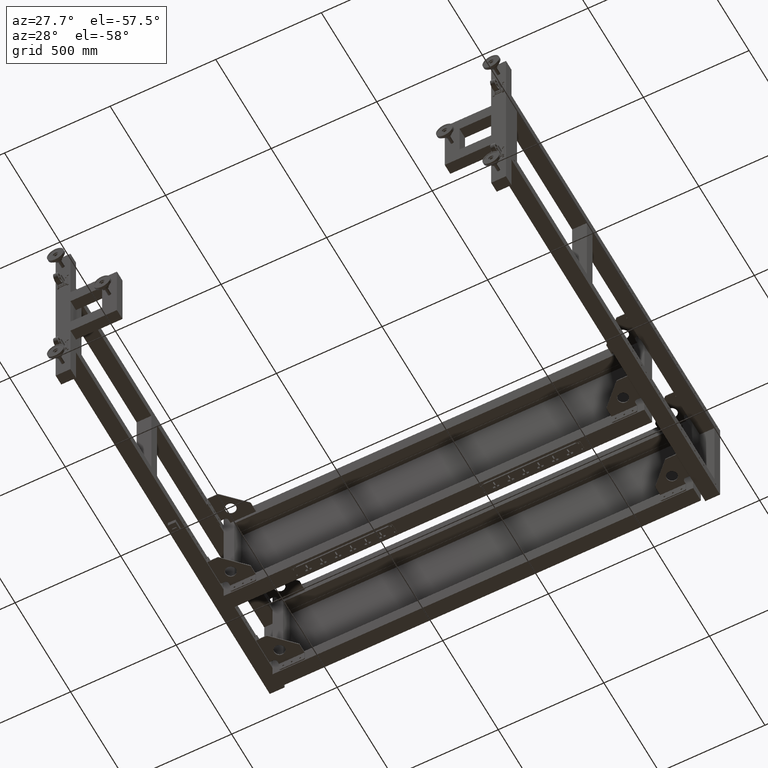
[diagram: clean part render]
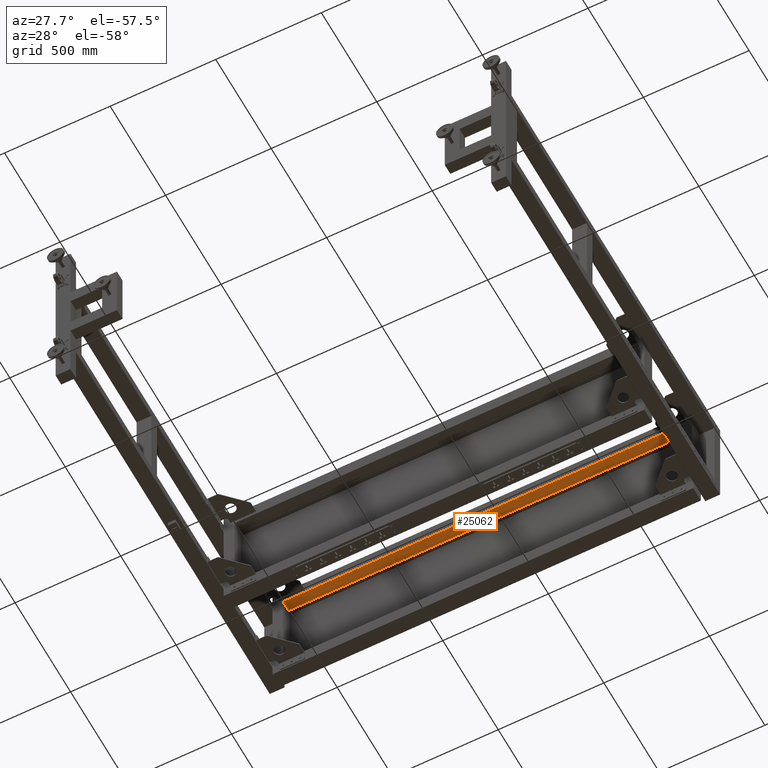
[diagram: same view with one face highlighted and labeled with its STEP entity id]
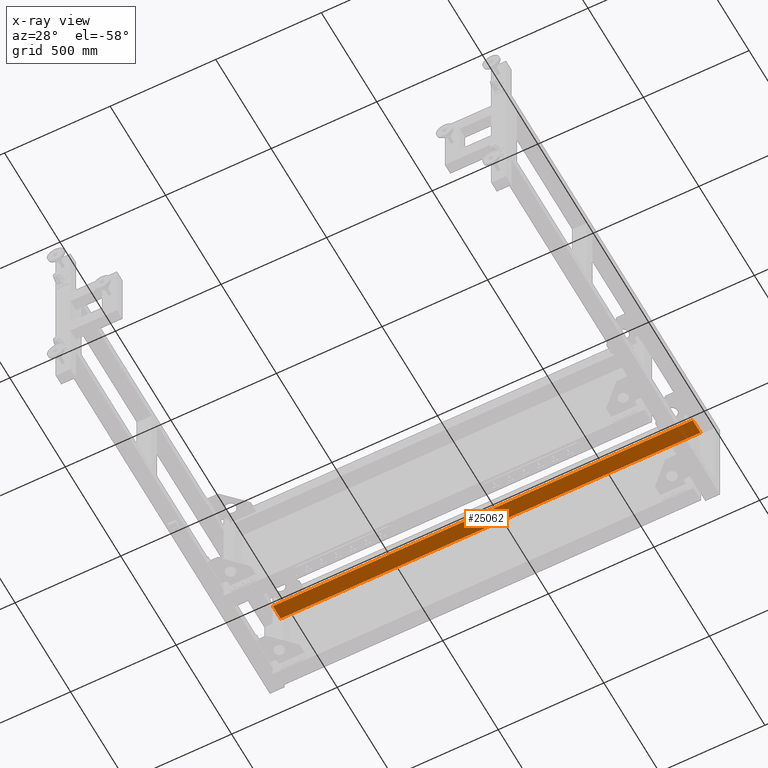
[diagram: x-ray of the same camera — body ghosted, the highlighted face saturated]
A machine part, auxiliary view. The second image highlights one B-rep face of the part: STEP entity #25062.
The next image is the same camera in x-ray: the body ghosted, the highlighted face saturated — about 4% of this face is hidden behind the body in this view.
In plain terms, the highlighted planar face has unit normal (0, -0, 1).
Its self-contained STEP definition (entity closure, byte-faithful):
#281 = DIRECTION ( 'NONE',  ( 0.000000000000000000, -1.000000000000000000, -3.603491776919587486E-15 ) ) ;
#1464 = DIRECTION ( 'NONE',  ( 1.000000000000000000, 0.000000000000000000, 0.000000000000000000 ) ) ;
#3005 = CARTESIAN_POINT ( 'NONE',  ( 721.8275125628159685, 996.9410804020124033, 230.0000000000011653 ) ) ;
#6690 = FACE_OUTER_BOUND ( 'NONE', #47398, .T. ) ;
#11652 = ORIENTED_EDGE ( 'NONE', *, *, #19323, .T. ) ;
#14399 = AXIS2_PLACEMENT_3D ( 'NONE', #24676, #61947, #80771 ) ;
#14696 = EDGE_CURVE ( 'NONE', #45233, #74361, #70160, .T. ) ;
#18423 = VECTOR ( 'NONE', #43444, 1000.000000000000000 ) ;
#18874 = LINE ( 'NONE', #74967, #18423 ) ;
#19323 = EDGE_CURVE ( 'NONE', #25475, #55514, #18874, .T. ) ;
#22523 = LINE ( 'NONE', #47512, #76014 ) ;
#24676 = CARTESIAN_POINT ( 'NONE',  ( -1474.172487437185964, 926.9410804020119485, 230.0000000000009379 ) ) ;
#24741 = ORIENTED_EDGE ( 'NONE', *, *, #14696, .F. ) ;
#25062 = ADVANCED_FACE ( 'NONE', ( #6690 ), #25904, .F. ) ;
#25475 = VERTEX_POINT ( 'NONE', #36896 ) ;
#25904 = PLANE ( 'NONE',  #14399 ) ;
#31901 = CARTESIAN_POINT ( 'NONE',  ( -1266.172487437185964, 926.9410804020119485, 230.0000000000009379 ) ) ;
#32581 = VECTOR ( 'NONE', #1464, 1000.000000000000000 ) ;
#36896 = CARTESIAN_POINT ( 'NONE',  ( -1266.172487437185964, 996.9410804020120622, 230.0000000000011653 ) ) ;
#40573 = VECTOR ( 'NONE', #281, 1000.000000000000000 ) ;
#43444 = DIRECTION ( 'NONE',  ( 1.000000000000000000, 0.000000000000000000, 0.000000000000000000 ) ) ;
#44024 = CARTESIAN_POINT ( 'NONE',  ( -1266.172487437185964, 926.9410804020119485, 230.0000000000009379 ) ) ;
#44418 = CARTESIAN_POINT ( 'NONE',  ( -1474.172487437185964, 926.9410804020119485, 230.0000000000009379 ) ) ;
#45233 = VERTEX_POINT ( 'NONE', #31901 ) ;
#46267 = ORIENTED_EDGE ( 'NONE', *, *, #61347, .F. ) ;
#47398 = EDGE_LOOP ( 'NONE', ( #11652, #52264, #24741, #46267 ) ) ;
#47512 = CARTESIAN_POINT ( 'NONE',  ( 721.8275125628159685, 926.9410804020122896, 230.0000000000009379 ) ) ;
#52264 = ORIENTED_EDGE ( 'NONE', *, *, #67235, .T. ) ;
#55514 = VERTEX_POINT ( 'NONE', #3005 ) ;
#61347 = EDGE_CURVE ( 'NONE', #25475, #45233, #70181, .T. ) ;
#61947 = DIRECTION ( 'NONE',  ( 0.000000000000000000, -3.603491776919587486E-15, 1.000000000000000000 ) ) ;
#67235 = EDGE_CURVE ( 'NONE', #55514, #74361, #22523, .T. ) ;
#70160 = LINE ( 'NONE', #44418, #32581 ) ;
#70181 = LINE ( 'NONE', #44024, #40573 ) ;
#72465 = DIRECTION ( 'NONE',  ( 2.653611717788262918E-16, -1.000000000000000000, -3.603491776919587486E-15 ) ) ;
#72915 = CARTESIAN_POINT ( 'NONE',  ( 721.8275125628159685, 926.9410804020122896, 230.0000000000009379 ) ) ;
#74361 = VERTEX_POINT ( 'NONE', #72915 ) ;
#74967 = CARTESIAN_POINT ( 'NONE',  ( -1474.172487437185964, 996.9410804020120622, 230.0000000000011653 ) ) ;
#76014 = VECTOR ( 'NONE', #72465, 1000.000000000000000 ) ;
#80771 = DIRECTION ( 'NONE',  ( 0.000000000000000000, 1.000000000000000000, 3.603491776919587486E-15 ) ) ;